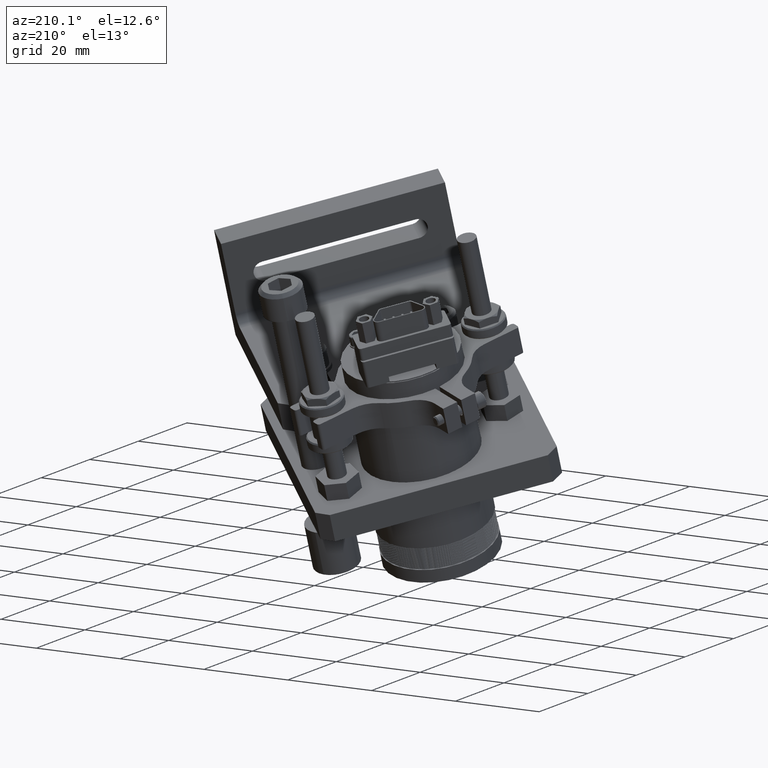
[diagram: clean part render]
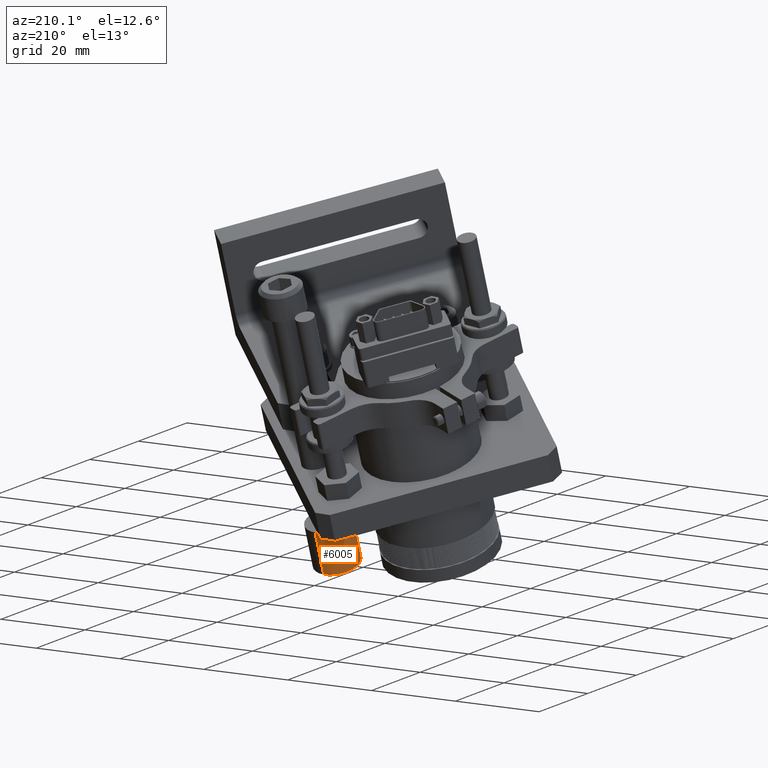
[diagram: same view with one face highlighted and labeled with its STEP entity id]
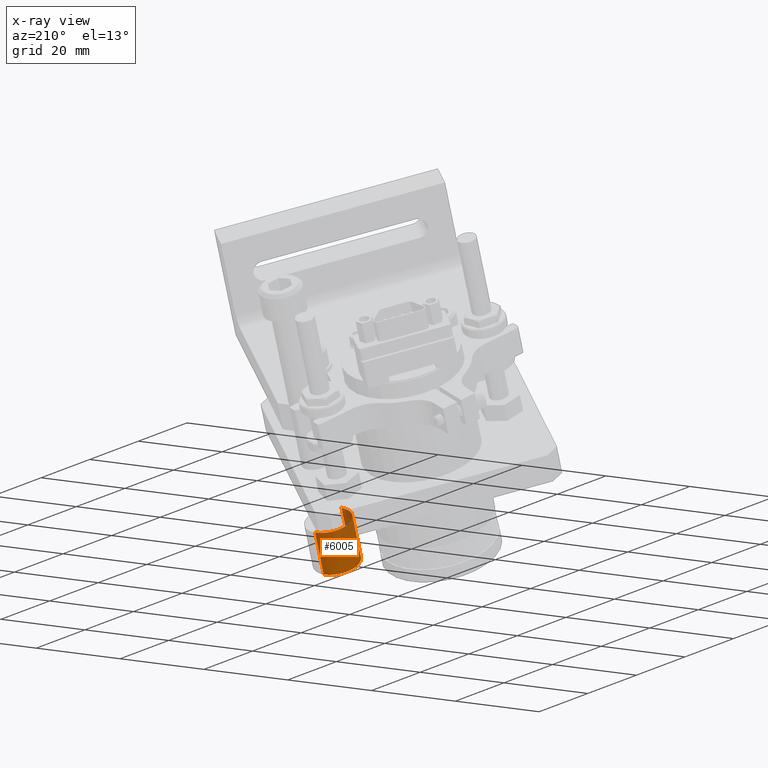
[diagram: x-ray of the same camera — body ghosted, the highlighted face saturated]
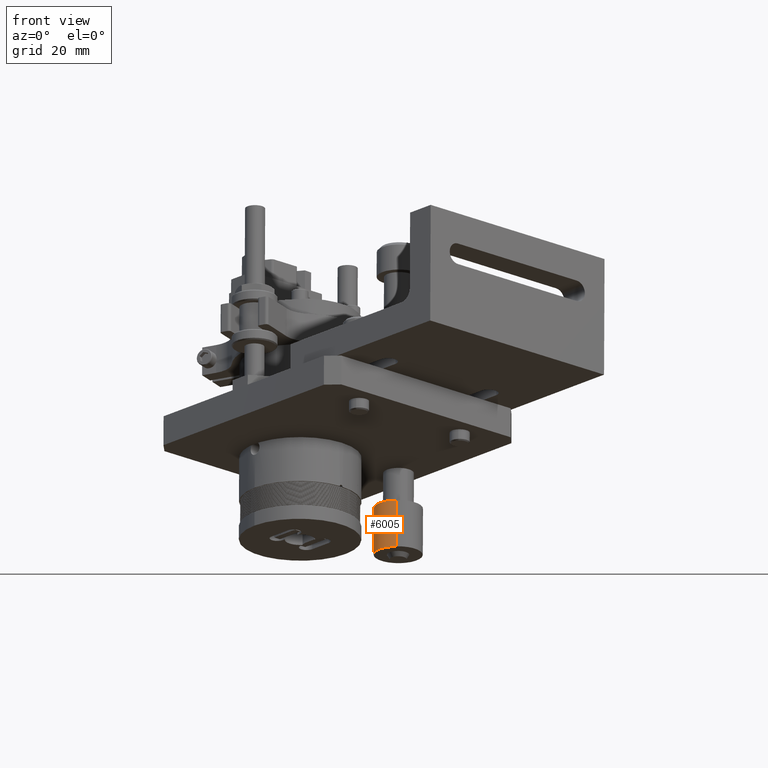
[diagram: same view with one face highlighted and labeled with its STEP entity id]
A machine part, auxiliary view. The second image highlights one B-rep face of the part: STEP entity #6005.
The next image is the same camera in x-ray: the body ghosted, the highlighted face saturated — about 27% of this face is hidden behind the body in this view.
A second angle (front view) of the same face is appended — the face is thin or edge-on in the first view.
In plain terms, the highlighted cylindrical surface (edge-blend (fillet) strip) has radius 5.08 mm, axis along (-0.0041, -0.3425, -0.9395).
Its self-contained STEP definition (entity closure, byte-faithful):
#2157 = EDGE_LOOP ( 'NONE', ( #24488, #24510, #24485, #24524 ) ) ;
#3547 = VERTEX_POINT ( 'NONE', #10676 ) ;
#3731 = VERTEX_POINT ( 'NONE', #10860 ) ;
#3732 = VERTEX_POINT ( 'NONE', #10861 ) ;
#3733 = VERTEX_POINT ( 'NONE', #10862 ) ;
#6005 = ADVANCED_FACE ( 'NONE', ( #8798 ), #8799, .T. ) ;
#7596 = AXIS2_PLACEMENT_3D ( 'NONE', #11100, #11101, #11102 ) ;
#8057 = AXIS2_PLACEMENT_3D ( 'NONE', #13727, #13729, #13730 ) ;
#8086 = AXIS2_PLACEMENT_3D ( 'NONE', #15177, #15178, #15179 ) ;
#8798 = FACE_OUTER_BOUND ( 'NONE', #2157, .T. ) ;
#8799 = CYLINDRICAL_SURFACE ( 'NONE', #7596, 0.2000000000000001800 ) ;
#10676 = CARTESIAN_POINT ( 'NONE',  ( 0.2000000000000000100, 2.449293598294706200E-017, 0.4000000000000000800 ) ) ;
#10860 = CARTESIAN_POINT ( 'NONE',  ( -0.2000000000000000100, 0.0000000000000000000, 0.4000000000000000800 ) ) ;
#10861 = CARTESIAN_POINT ( 'NONE',  ( -0.2000000000000000100, 0.0000000000000000000, 0.0000000000000000000 ) ) ;
#10862 = CARTESIAN_POINT ( 'NONE',  ( 0.2000000000000000100, 2.449293598294706200E-017, 0.0000000000000000000 ) ) ;
#11100 = CARTESIAN_POINT ( 'NONE',  ( 0.0000000000000000000, 0.0000000000000000000, 0.4000000000000000800 ) ) ;
#11101 = DIRECTION ( 'NONE',  ( -0.0000000000000000000, 0.0000000000000000000, -1.000000000000000000 ) ) ;
#11102 = DIRECTION ( 'NONE',  ( -1.000000000000000000, 0.0000000000000000000, 0.0000000000000000000 ) ) ;
#13692 = CARTESIAN_POINT ( 'NONE',  ( 0.2000000000000001800, 2.449293598294708400E-017, 0.4000000000000000800 ) ) ;
#13694 = DIRECTION ( 'NONE',  ( -0.0000000000000000000, 0.0000000000000000000, -1.000000000000000000 ) ) ;
#13727 = CARTESIAN_POINT ( 'NONE',  ( 0.0000000000000000000, 0.0000000000000000000, 0.4000000000000000800 ) ) ;
#13729 = DIRECTION ( 'NONE',  ( 0.0000000000000000000, 0.0000000000000000000, 1.000000000000000000 ) ) ;
#13730 = DIRECTION ( 'NONE',  ( 1.000000000000000000, 0.0000000000000000000, 0.0000000000000000000 ) ) ;
#14523 = LINE ( 'NONE', #13692, #14525 ) ;
#14525 = VECTOR ( 'NONE', #13694, 39.37007874015748100 ) ;
#14533 = CIRCLE ( 'NONE', #8057, 0.2000000000000001800 ) ;
#14635 = CIRCLE ( 'NONE', #8086, 0.2000000000000001800 ) ;
#14640 = LINE ( 'NONE', #15188, #14641 ) ;
#14641 = VECTOR ( 'NONE', #15189, 39.37007874015748100 ) ;
#15177 = CARTESIAN_POINT ( 'NONE',  ( 0.0000000000000000000, 0.0000000000000000000, 0.0000000000000000000 ) ) ;
#15178 = DIRECTION ( 'NONE',  ( 0.0000000000000000000, 0.0000000000000000000, 1.000000000000000000 ) ) ;
#15179 = DIRECTION ( 'NONE',  ( 1.000000000000000000, 0.0000000000000000000, 0.0000000000000000000 ) ) ;
#15188 = CARTESIAN_POINT ( 'NONE',  ( -0.2000000000000001800, 0.0000000000000000000, 0.4000000000000000800 ) ) ;
#15189 = DIRECTION ( 'NONE',  ( -0.0000000000000000000, 0.0000000000000000000, -1.000000000000000000 ) ) ;
#17071 = EDGE_CURVE ( 'NONE', #3547, #3733, #14523, .T. ) ;
#17077 = EDGE_CURVE ( 'NONE', #3731, #3547, #14533, .T. ) ;
#17143 = EDGE_CURVE ( 'NONE', #3732, #3733, #14635, .T. ) ;
#17147 = EDGE_CURVE ( 'NONE', #3731, #3732, #14640, .T. ) ;
#24485 = ORIENTED_EDGE ( 'NONE', *, *, #17147, .T. ) ;
#24488 = ORIENTED_EDGE ( 'NONE', *, *, #17071, .F. ) ;
#24510 = ORIENTED_EDGE ( 'NONE', *, *, #17077, .F. ) ;
#24524 = ORIENTED_EDGE ( 'NONE', *, *, #17143, .T. ) ;